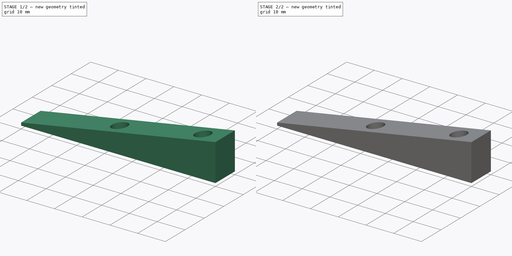
[diagram: build sequence overview — one tinted view per stage of 2, left to right]
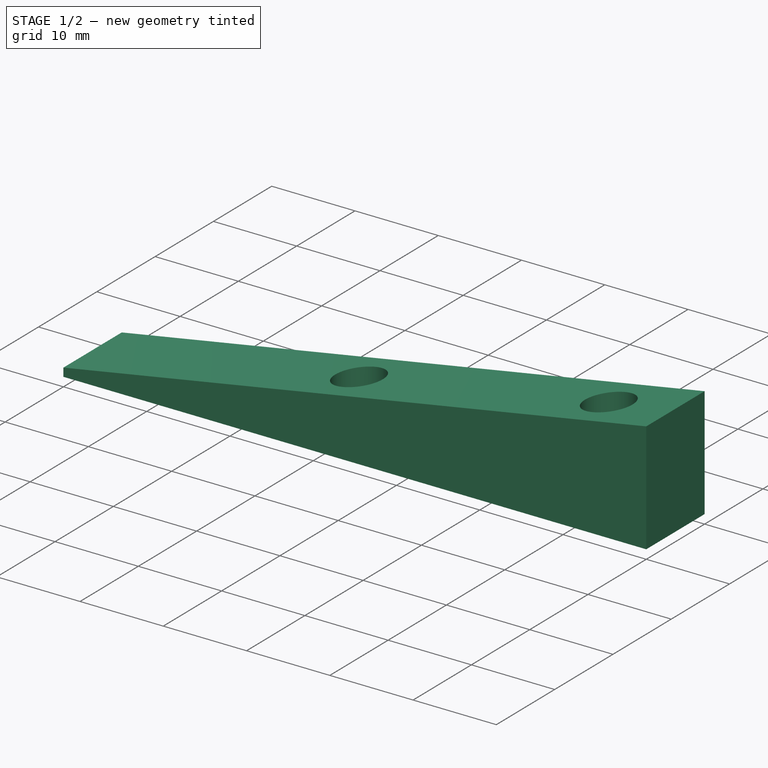
[diagram: stage 1 of 2 — iso view after this stage's code; geometry added in this stage tinted green]
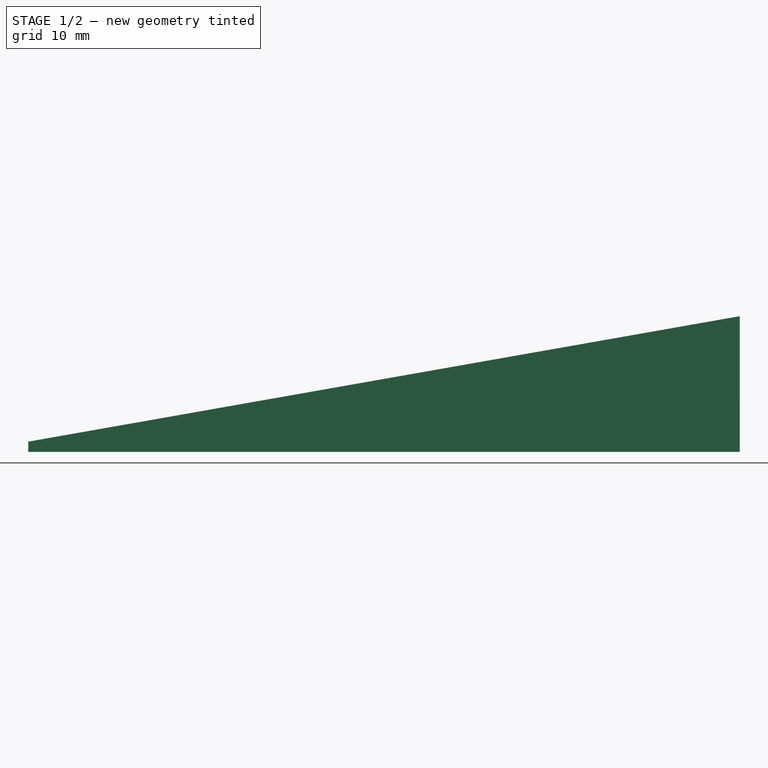
[diagram: stage 1 of 2 — front view after this stage's code; geometry added in this stage tinted green]
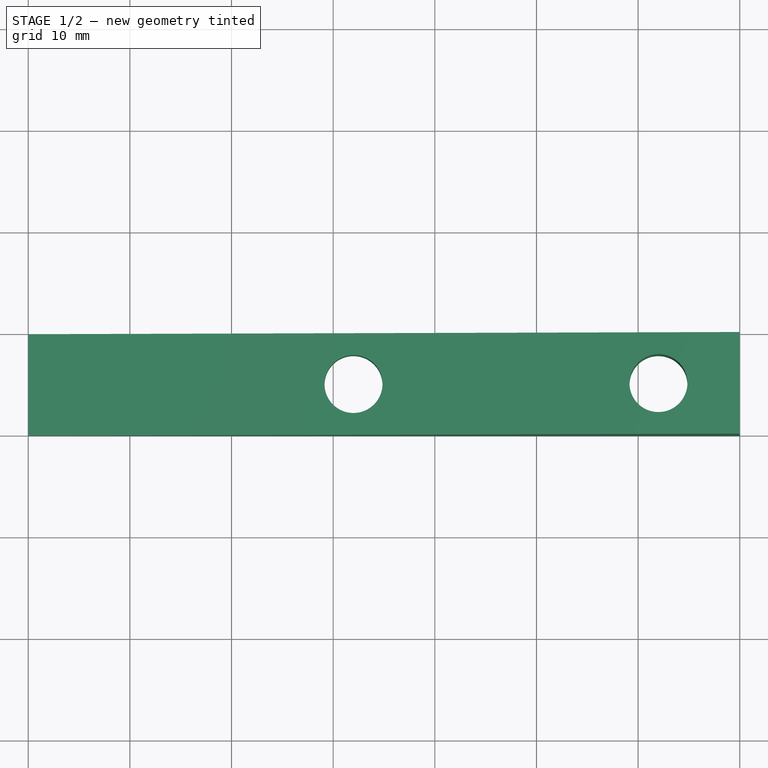
[diagram: stage 1 of 2 — top view after this stage's code; geometry added in this stage tinted green]
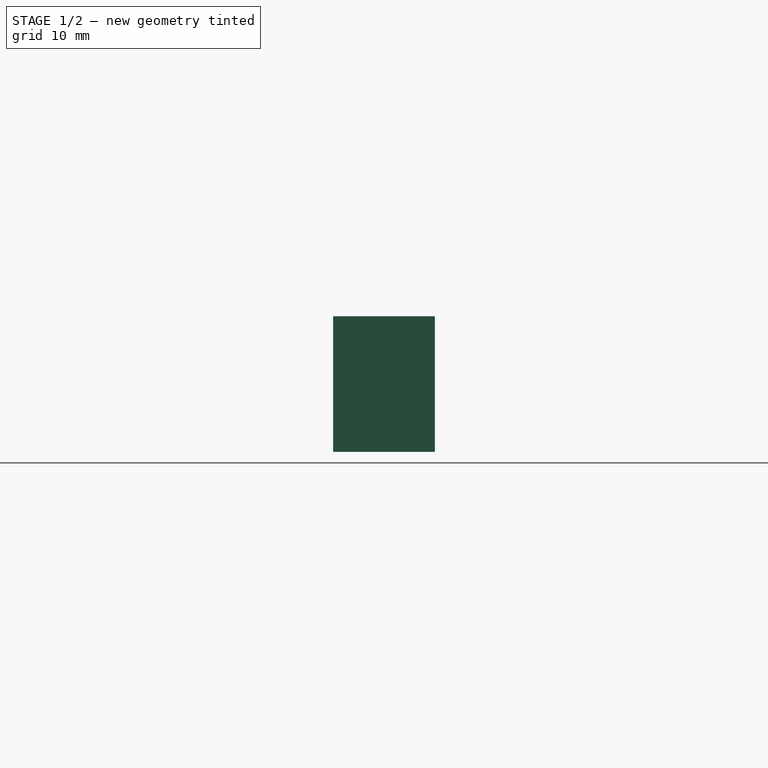
[diagram: stage 1 of 2 — right view after this stage's code; geometry added in this stage tinted green]
FCSTD DOCUMENT  (FreeCAD 1.0R39319 (Git))
Label: belt_sander_angle_guide3
License: All rights reserved
LicenseURL: https://en.wikipedia.org/wiki/All_rights_reserved
objects: Sketcher::SketchObject×4, PartDesign::Pad×2, PartDesign::Pocket×1, PartDesign::Body×1
note: 18 computed .brp shape members not serialized (recipe doc carries the construction recipe); baked Part::Feature solids carry a one-line shape summary decoded from their .brp

FEATURE [Sketcher::SketchObject] Sketch
  ArcFitTolerance = 1e-06
  AttachmentSupport = -> [XZ_Plane]
  FullyConstrained = true
  MakeInternals = false
  MapMode = 5
  Placement = pos=(0,0,0) rot=(1,0,0;1.5708rad)
  sketch-geometry (4):
    g0: LineSegment StartX=0 StartY=0 StartZ=0 EndX=0 EndY=1 EndZ=0
    g1: LineSegment StartX=0 StartY=1 StartZ=0 EndX=70 EndY=13.3429 EndZ=0
    g2: LineSegment StartX=70 StartY=13.3429 StartZ=0 EndX=70 EndY=0 EndZ=0
    g3: LineSegment StartX=70 StartY=0 StartZ=0 EndX=0 EndY=0 EndZ=0
  constraints (11):
    c: Coincident(g0,g-1)
    c: PointOnObject(g0,g-2)
    c: Coincident(g1,g0)
    c: Coincident(g2,g1)
    c: PointOnObject(g2,g-1)
    c: Vertical(g2)
    c: Coincident(g3,g2)
    c: Coincident(g3,g0)
    c: Angle(g1) = 0.174533
    c: DistanceY(g0,g0) = 1
    c: DistanceX(g3,g3) = 70
FEATURE [PartDesign::Pad] Pad
  Direction = (0,-1,2e-16)
  Length = 10
  Length2 = 10
  Placement = pos=(0,0,0) rot=(1,0,0;1.5708rad)
  Profile = -> Sketch
  ReferenceAxis = -> Sketch [N_Axis]
  Refine = true
  Suppressed = false
  Type = 0
FEATURE [Sketcher::SketchObject] Sketch001
  ArcFitTolerance = 1e-06
  AttachmentSupport = -> [Pad]
  FullyConstrained = true
  MakeInternals = false
  MapMode = 5
  Placement = pos=(-0.17101,2e-16,0.969846) rot=(-0.087156,0,0.996195;3.14159rad)
FEATURE [Sketcher::SketchObject] Sketch002
  ArcFitTolerance = 1e-06
  AttachmentSupport = -> [Pad]
  ExternalGeometry = -> [Pad]
  FullyConstrained = true
  MakeInternals = false
  MapMode = 5
  Placement = pos=(0,0,0) rot=(1,0,0;3.14159rad)
  sketch-geometry (3):
    g0: Circle CenterX=32 CenterY=5 CenterZ=0 NormalX=0 NormalY=0 NormalZ=1 AngleXU=0 Radius=2.85
    g1: Circle CenterX=62 CenterY=5 CenterZ=0 NormalX=0 NormalY=0 NormalZ=1 AngleXU=0 Radius=2.85
    g2: GeomPoint [constr] X=0 Y=5 Z=0
  constraints (7):
    c: Equal(g1,g0)
    c: Diameter(g0) = 5.7
    c: Symmetric(g-3,g-3,g2)
    c: Horizontal(g2,g0)
    c: Horizontal(g0,g1)
    c: DistanceX(g-1,g0) = 32
    c: DistanceX(g-1,g1) = 62
FEATURE [PartDesign::Pocket] Pocket
  BaseFeature = -> Pad
  Direction = (0,0,1)
  Length = 30
  Length2 = 5
  Placement = pos=(0,0,0) rot=(1,0,0;1.5708rad)
  Profile = -> Sketch002
  ReferenceAxis = -> Sketch002 [N_Axis]
  Refine = true
  Suppressed = false
  Type = 0
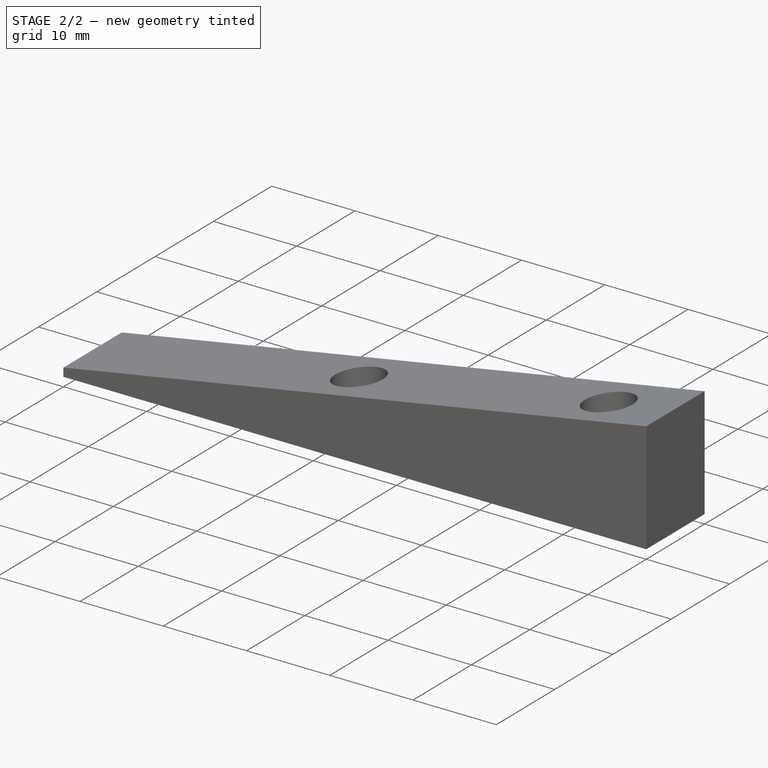
[diagram: stage 2 of 2 — iso view after this stage's code; geometry added in this stage tinted green]
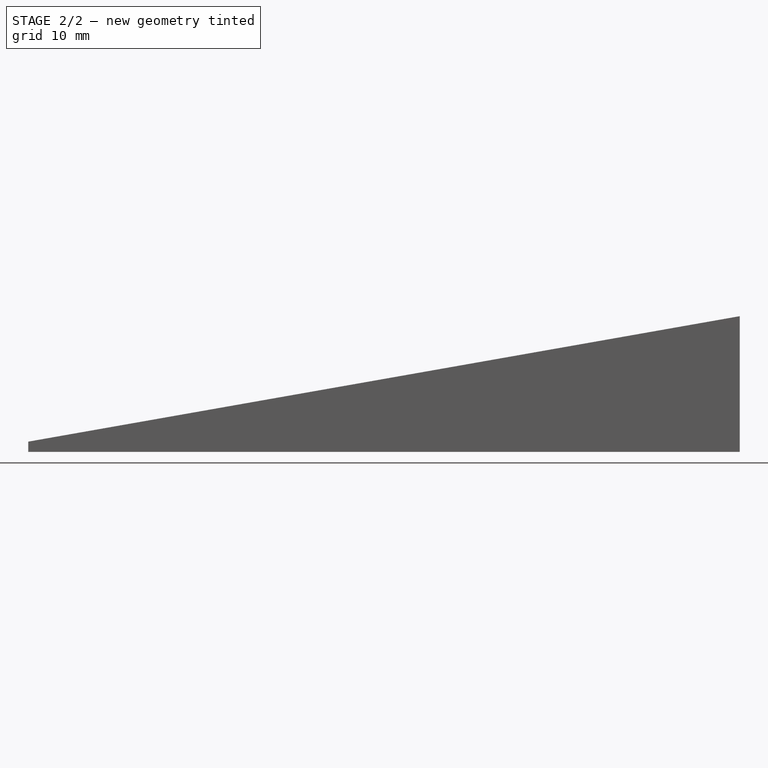
[diagram: stage 2 of 2 — front view after this stage's code; geometry added in this stage tinted green]
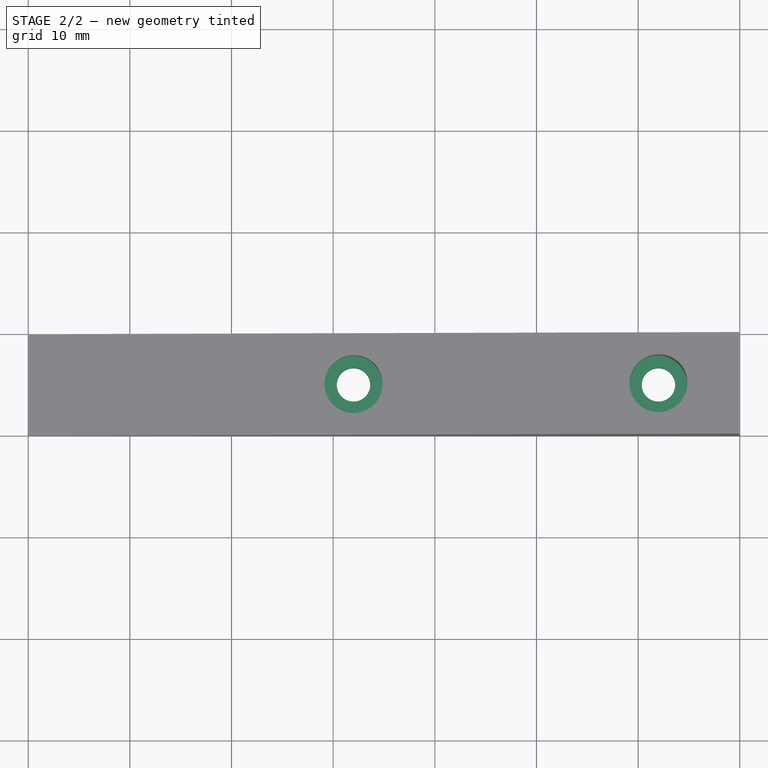
[diagram: stage 2 of 2 — top view after this stage's code; geometry added in this stage tinted green]
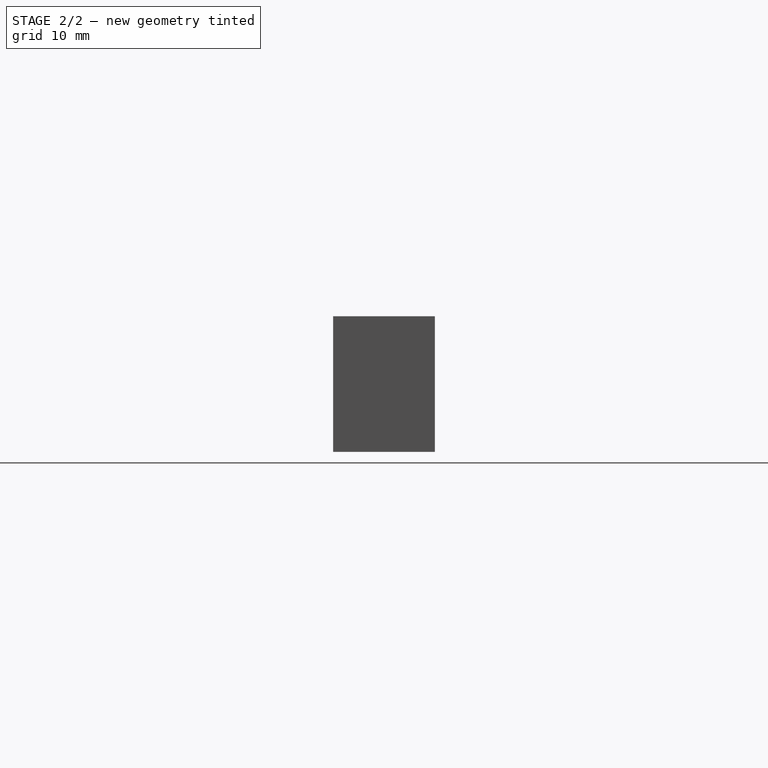
[diagram: stage 2 of 2 — right view after this stage's code; geometry added in this stage tinted green]
FEATURE [Sketcher::SketchObject] Sketch003
  ArcFitTolerance = 1e-06
  AttachmentSupport = -> [Pocket]
  ExternalGeometry = -> [Pocket]
  FullyConstrained = true
  MakeInternals = false
  MapMode = 5
  Placement = pos=(0,0,0) rot=(1,0,0;3.14159rad)
  sketch-geometry (4):
    g0: Circle CenterX=32 CenterY=5 CenterZ=0 NormalX=0 NormalY=0 NormalZ=1 AngleXU=0 Radius=3.5
    g1: Circle CenterX=32 CenterY=5 CenterZ=0 NormalX=0 NormalY=0 NormalZ=1 AngleXU=0 Radius=1.643
    g2: Circle CenterX=62 CenterY=5 CenterZ=0 NormalX=0 NormalY=0 NormalZ=1 AngleXU=0 Radius=3.5
    g3: Circle CenterX=62 CenterY=5 CenterZ=0 NormalX=0 NormalY=0 NormalZ=1 AngleXU=0 Radius=1.643
  constraints (8):
    c: Coincident(g0,g-3)
    c: Coincident(g1,g0)
    c: Coincident(g2,g-4)
    c: Coincident(g3,g2)
    c: Equal(g3,g1)
    c: Diameter(g1) = 3.286
    c: Diameter(g2) = 7
    c: Equal(g0,g2)
FEATURE [PartDesign::Pad] Pad001
  BaseFeature = -> Pocket
  Direction = (0,0,-1)
  Length = 2
  Length2 = 10
  Placement = pos=(0,0,0) rot=(1,0,0;1.5708rad)
  Profile = -> Sketch003
  ReferenceAxis = -> Sketch003 [N_Axis]
  Refine = true
  Reversed = true
  Suppressed = false
  Type = 0
FEATURE [PartDesign::Body] Body
  AllowCompound = false
  Group = -> [Sketch,Pad,Sketch001,Sketch002,Pocket,Sketch003,Pad001]
  Origin = -> Origin
  Tip = -> Pad001
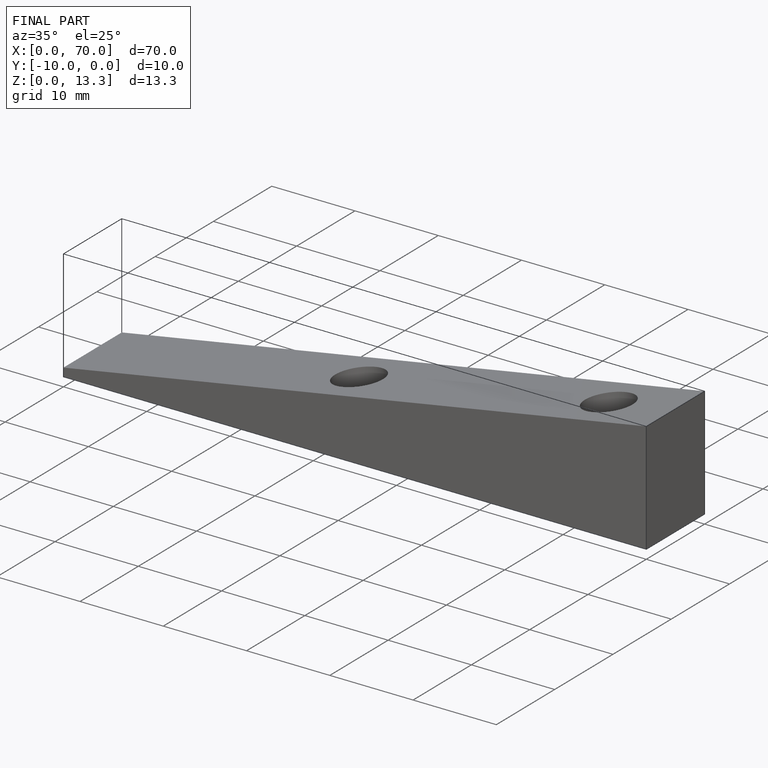
[diagram: finished part — iso view with bounding-box wireframe]
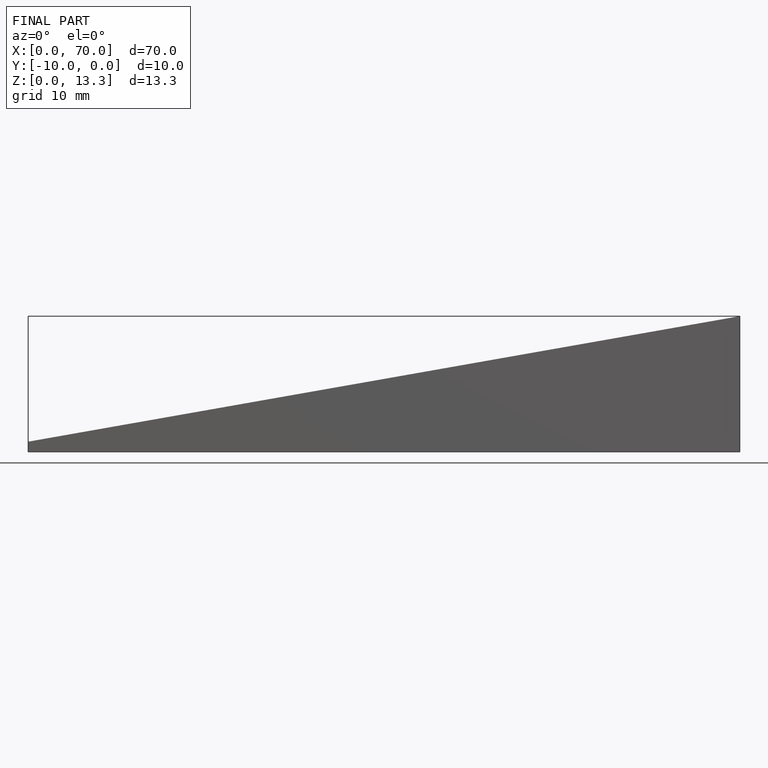
[diagram: finished part — front view with bounding-box wireframe]
